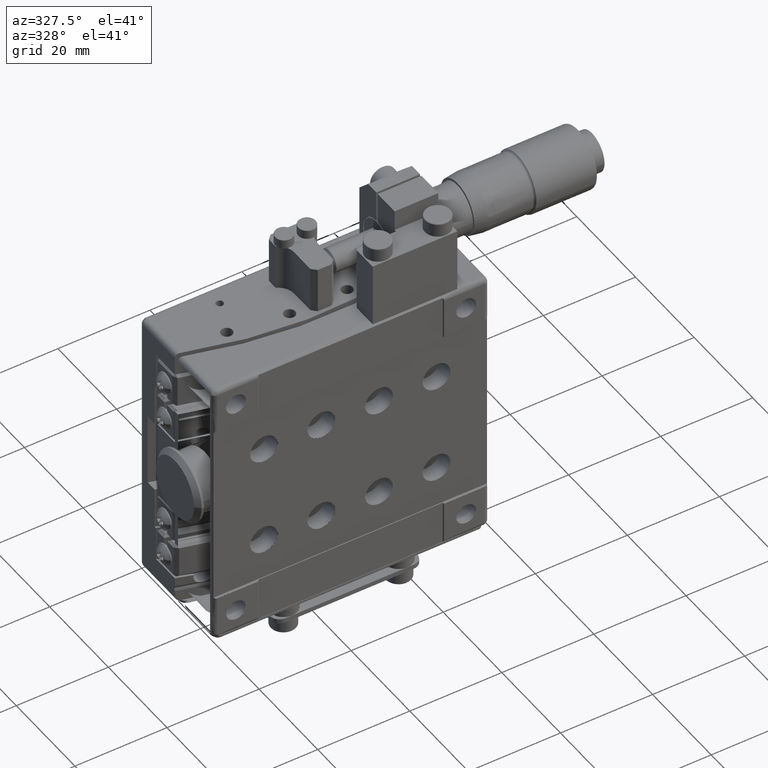
[diagram: clean part render]
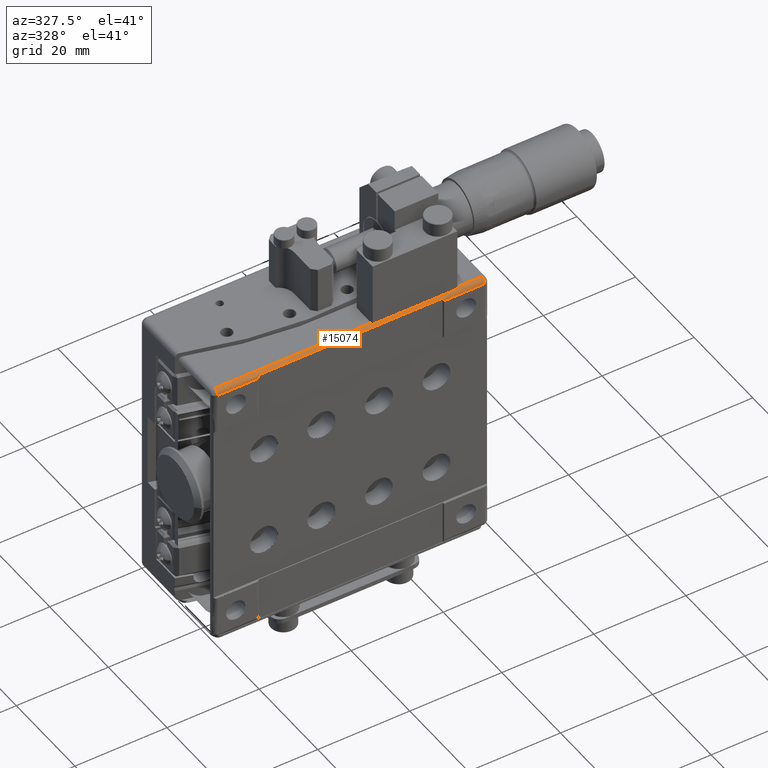
[diagram: same view with one face highlighted and labeled with its STEP entity id]
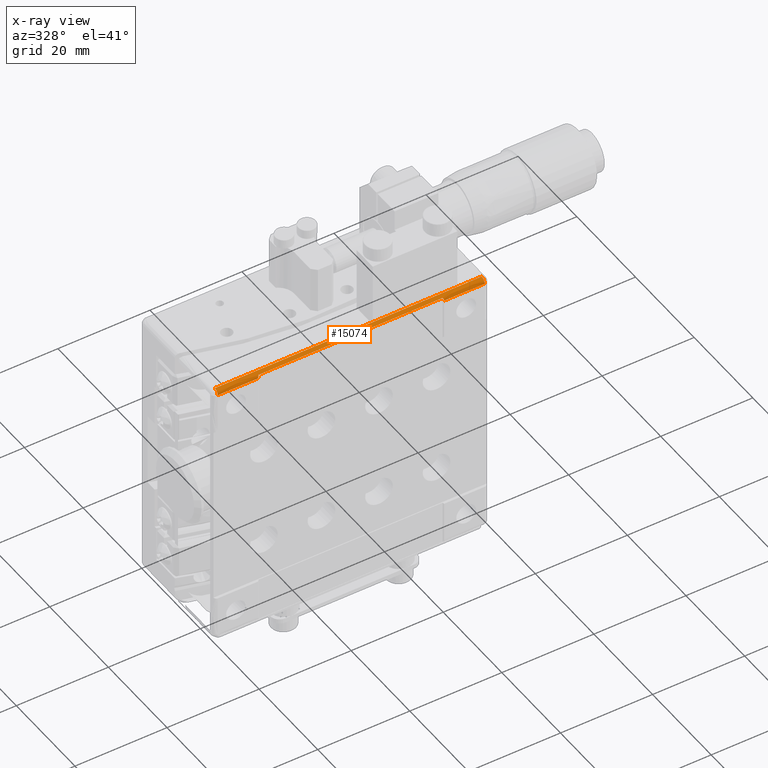
[diagram: x-ray of the same camera — body ghosted, the highlighted face saturated]
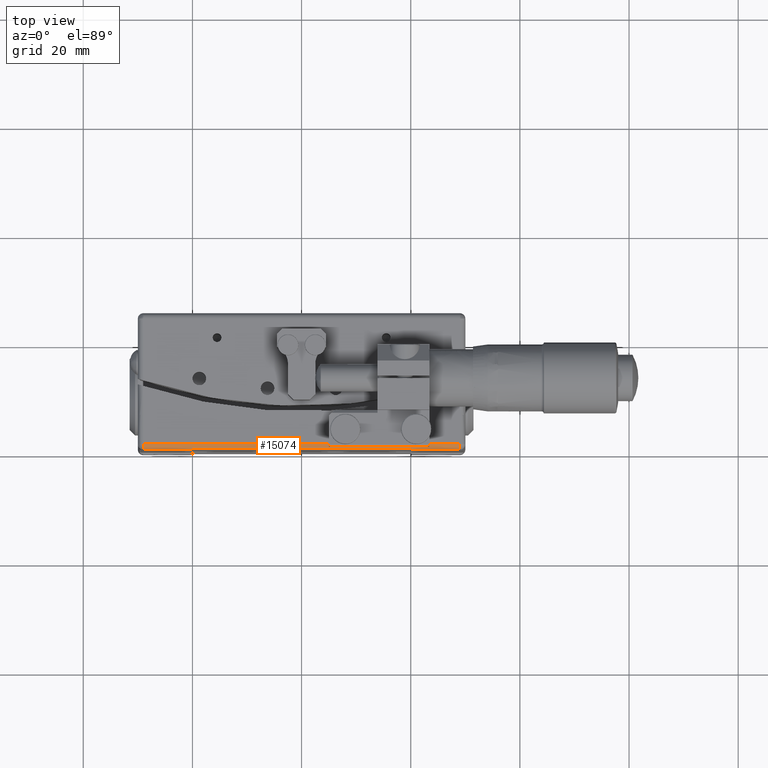
[diagram: same view with one face highlighted and labeled with its STEP entity id]
A machine part, auxiliary view. The second image highlights one B-rep face of the part: STEP entity #15074.
The next image is the same camera in x-ray: the body ghosted, the highlighted face saturated — about 0% of this face is hidden behind the body in this view.
A second angle (top view) of the same face is appended — the face is thin or edge-on in the first view.
In plain terms, the highlighted face is a freeform B-spline surface patch.
Its self-contained STEP definition (entity closure, byte-faithful):
#2598 = CARTESIAN_POINT ( 'NONE',  ( 20.18289443268349714, -99.98289443268345167, 29.21359436211785621 ) ) ;
#3123 = CARTESIAN_POINT ( 'NONE',  ( 23.39999999999948344, -98.99999999999998579, 30.00000000000000000 ) ) ;
#4188 = CARTESIAN_POINT ( 'NONE',  ( 29.00000000000001066, -99.00000000000000000, 30.00000000000000000 ) ) ;
#4524 = CARTESIAN_POINT ( 'NONE',  ( 34.80120000000002278, -99.99999999999998579, 28.99999999999999645 ) ) ;
#4911 = CARTESIAN_POINT ( 'NONE',  ( -34.80119999999999436, -98.99999999999998579, 30.00000000000001421 ) ) ;
#6103 = CIRCLE ( 'NONE', #49387, 1.000000000000042633 ) ;
#9158 = VECTOR ( 'NONE', #73356, 1000.000000000000000 ) ;
#9426 = EDGE_CURVE ( 'NONE', #72787, #22741, #6103, .T. ) ;
#9543 = CARTESIAN_POINT ( 'NONE',  ( 34.80120000000002278, -97.99999999999998579, 27.99999999999999645 ) ) ;
#10275 = LINE ( 'NONE', #40491, #62601 ) ;
#12280 = VERTEX_POINT ( 'NONE', #65595 ) ;
#12959 = CARTESIAN_POINT ( 'NONE',  ( -28.99999999999998934, -99.00000000000000000, 30.00000000000000000 ) ) ;
#13089 = CARTESIAN_POINT ( 'NONE',  ( 29.00000000000000000, -99.00000000000001421, 28.99999999999995381 ) ) ;
#13255 = EDGE_CURVE ( 'NONE', #52978, #15530, #38488, .T. ) ;
#14702 = ORIENTED_EDGE ( 'NONE', *, *, #48253, .F. ) ;
#14964 = CARTESIAN_POINT ( 'NONE',  ( 20.00000000000000711, -99.79999999999999716, 29.59999999999998721 ) ) ;
#15074 = ADVANCED_FACE ( 'NONE', ( #44809 ), #74634, .T. ) ;
#15530 = VERTEX_POINT ( 'NONE', #67536 ) ;
#16503 = CARTESIAN_POINT ( 'NONE',  ( 34.80120000000002278, -97.99999999999998579, 28.99999999999999645 ) ) ;
#18446 = CARTESIAN_POINT ( 'NONE',  ( 4.999999999999480416, -99.00000000000000000, 30.00000000000000355 ) ) ;
#20512 = VECTOR ( 'NONE', #61072, 1000.000000000000000 ) ;
#21165 = CARTESIAN_POINT ( 'NONE',  ( 20.20000000000000284, -99.99999999999997158, 28.99999999999999645 ) ) ;
#21556 = CARTESIAN_POINT ( 'NONE',  ( -34.80119999999999436, -97.99999999999998579, 27.99999999999998224 ) ) ;
#22741 = VERTEX_POINT ( 'NONE', #38423 ) ;
#24540 = EDGE_CURVE ( 'NONE', #12280, #63107, #50780, .T. ) ;
#25443 = CARTESIAN_POINT ( 'NONE',  ( 29.88120000000001397, -99.99999999999998579, 28.99999999999999645 ) ) ;
#25873 = EDGE_CURVE ( 'NONE', #61925, #72787, #39298, .T. ) ;
#27816 = CARTESIAN_POINT ( 'NONE',  ( 1.387778780781445676E-14, -100.0000000000000000, 28.99999999999999645 ) ) ;
#28046 = CARTESIAN_POINT ( 'NONE',  ( -34.80119999999999436, -98.99999999999998579, 30.00000000000000000 ) ) ;
#28501 = CARTESIAN_POINT ( 'NONE',  ( 34.80120000000002278, -97.99999999999998579, 28.99999999999999645 ) ) ;
#29750 = B_SPLINE_CURVE_WITH_KNOTS ( 'NONE', 3,
 ( #14964, #56793, #38970, #2598, #38591, #21165 ),
 .UNSPECIFIED., .F., .F.,
 ( 4, 2, 4 ),
 ( 3.141592653589793116, 3.463343207986428141, 3.785093762383063165 ),
 .UNSPECIFIED. ) ;
#31501 = CARTESIAN_POINT ( 'NONE',  ( 20.20000000000000284, -99.99999999999997158, 28.99999999999999645 ) ) ;
#33156 = CARTESIAN_POINT ( 'NONE',  ( -34.80119999999999436, -97.99999999999998579, 30.00000000000001066 ) ) ;
#34304 = CARTESIAN_POINT ( 'NONE',  ( -34.80119999999999436, -97.99999999999997158, 28.99999999999999645 ) ) ;
#34694 = CARTESIAN_POINT ( 'NONE',  ( 34.80120000000002278, -98.99999999999998579, 27.99999999999999645 ) ) ;
#34727 = VECTOR ( 'NONE', #45112, 1000.000000000000000 ) ;
#35439 = DIRECTION ( 'NONE',  ( 1.000000000000000000, 0.000000000000000000, 0.000000000000000000 ) ) ;
#37190 = EDGE_CURVE ( 'NONE', #38090, #22741, #54491, .T. ) ;
#37454 = CARTESIAN_POINT ( 'NONE',  ( 3.158799999999483354, -99.00000000000000000, 30.00000000000000711 ) ) ;
#37906 = ORIENTED_EDGE ( 'NONE', *, *, #45767, .T. ) ;
#38090 = VERTEX_POINT ( 'NONE', #31501 ) ;
#38423 = CARTESIAN_POINT ( 'NONE',  ( 28.99999999999999289, -100.0000000000000000, 28.99999999999997868 ) ) ;
#38488 = LINE ( 'NONE', #49742, #9158 ) ;
#38591 = CARTESIAN_POINT ( 'NONE',  ( 20.19999999999998863, -99.99999999999994316, 29.10540925533894452 ) ) ;
#38970 = CARTESIAN_POINT ( 'NONE',  ( 20.11447216341753119, -99.91447216341751414, 29.41886116991579669 ) ) ;
#38984 = CARTESIAN_POINT ( 'NONE',  ( -34.80119999999999436, -97.99999999999997158, 28.99999999999999645 ) ) ;
#39298 = LINE ( 'NONE', #28046, #34727 ) ;
#39368 = CARTESIAN_POINT ( 'NONE',  ( -34.80119999999999436, -100.0000000000000000, 27.99999999999998224 ) ) ;
#39839 = DIRECTION ( 'NONE',  ( 1.000000000000000000, 3.987732551697772388E-16, -0.000000000000000000 ) ) ;
#40491 = CARTESIAN_POINT ( 'NONE',  ( -34.80119999999999436, -99.00000000000000000, 30.00000000000000000 ) ) ;
#40991 = VECTOR ( 'NONE', #67249, 1000.000000000000000 ) ;
#42036 = B_SPLINE_CURVE_WITH_KNOTS ( 'NONE', 3,
 ( #59003, #64437, #46629, #52826 ),
 .UNSPECIFIED., .F., .F.,
 ( 4, 4 ),
 ( -6.283185307179586232, -5.639684198386296643 ),
 .UNSPECIFIED. ) ;
#43119 = CARTESIAN_POINT ( 'NONE',  ( -20.19999999999997442, -100.0000000000000142, 28.99999999999999645 ) ) ;
#44577 = ORIENTED_EDGE ( 'NONE', *, *, #24540, .F. ) ;
#44809 = FACE_OUTER_BOUND ( 'NONE', #70077, .T. ) ;
#45112 = DIRECTION ( 'NONE',  ( 1.000000000000000000, 0.000000000000000000, 0.000000000000000000 ) ) ;
#45767 = EDGE_CURVE ( 'NONE', #72541, #52978, #42036, .T. ) ;
#46629 = CARTESIAN_POINT ( 'NONE',  ( -20.12911902025345512, -99.92911902025343807, 29.42784130632873385 ) ) ;
#47375 = ORIENTED_EDGE ( 'NONE', *, *, #76532, .T. ) ;
#47768 = VECTOR ( 'NONE', #39839, 1000.000000000000000 ) ;
#48051 = ORIENTED_EDGE ( 'NONE', *, *, #13255, .T. ) ;
#48253 = EDGE_CURVE ( 'NONE', #63107, #56073, #10275, .T. ) ;
#49387 = AXIS2_PLACEMENT_3D ( 'NONE', #13089, #71589, #53794 ) ;
#49469 = LINE ( 'NONE', #37454, #20512 ) ;
#49742 = CARTESIAN_POINT ( 'NONE',  ( -24.00119999999999720, -99.79999999999999716, 29.59999999999998721 ) ) ;
#50780 = CIRCLE ( 'NONE', #74252, 1.000000000000014655 ) ;
#51471 = LINE ( 'NONE', #27816, #47768 ) ;
#51772 = CARTESIAN_POINT ( 'NONE',  ( -34.80119999999999436, -100.0000000000000142, 28.99999999999999645 ) ) ;
#52826 = CARTESIAN_POINT ( 'NONE',  ( -20.00000000000000000, -99.79999999999998295, 29.60000000000000497 ) ) ;
#52978 = VERTEX_POINT ( 'NONE', #53762 ) ;
#53762 = CARTESIAN_POINT ( 'NONE',  ( -20.00000000000000000, -99.79999999999998295, 29.60000000000000497 ) ) ;
#53780 = CARTESIAN_POINT ( 'NONE',  ( -28.99999999999999289, -98.99999999999998579, 28.99999999999999645 ) ) ;
#53794 = DIRECTION ( 'NONE',  ( 6.938893903906932555E-15, 1.000000000000000000, 4.163336342344159691E-14 ) ) ;
#53975 = ORIENTED_EDGE ( 'NONE', *, *, #68553, .T. ) ;
#54491 = LINE ( 'NONE', #25443, #40991 ) ;
#56073 = VERTEX_POINT ( 'NONE', #18446 ) ;
#56793 = CARTESIAN_POINT ( 'NONE',  ( 20.06324555320338021, -99.86324555320338447, 29.51567259572882662 ) ) ;
#57956 = CARTESIAN_POINT ( 'NONE',  ( 34.80120000000002278, -99.99999999999997158, 29.99999999999999289 ) ) ;
#58907 = ORIENTED_EDGE ( 'NONE', *, *, #37190, .T. ) ;
#59003 = CARTESIAN_POINT ( 'NONE',  ( -20.19999999999997442, -100.0000000000000142, 28.99999999999999645 ) ) ;
#59799 = ORIENTED_EDGE ( 'NONE', *, *, #76248, .T. ) ;
#60510 = ORIENTED_EDGE ( 'NONE', *, *, #25873, .F. ) ;
#61072 = DIRECTION ( 'NONE',  ( -1.000000000000000000, 0.000000000000000000, -0.000000000000000000 ) ) ;
#61474 = ORIENTED_EDGE ( 'NONE', *, *, #9426, .F. ) ;
#61925 = VERTEX_POINT ( 'NONE', #3123 ) ;
#62601 = VECTOR ( 'NONE', #35439, 1000.000000000000000 ) ;
#63107 = VERTEX_POINT ( 'NONE', #12959 ) ;
#64149 = CARTESIAN_POINT ( 'NONE',  ( 34.80120000000002278, -97.99999999999998579, 29.99999999999999289 ) ) ;
#64437 = CARTESIAN_POINT ( 'NONE',  ( -20.19999999999997797, -100.0000000000000142, 29.22191418280604580 ) ) ;
#65016 = DIRECTION ( 'NONE',  ( -3.469446951953563307E-15, 1.000000000000000000, 0.000000000000000000 ) ) ;
#65595 = CARTESIAN_POINT ( 'NONE',  ( -28.99999999999998934, -100.0000000000000000, 28.99999999999999645 ) ) ;
#66526 = DIRECTION ( 'NONE',  ( -1.000000000000000000, -3.469446951953550686E-15, 3.469446951953562913E-15 ) ) ;
#67249 = DIRECTION ( 'NONE',  ( 1.000000000000000000, -0.000000000000000000, -0.000000000000000000 ) ) ;
#67536 = CARTESIAN_POINT ( 'NONE',  ( 20.00000000000000711, -99.79999999999999716, 29.59999999999998721 ) ) ;
#68427 = CARTESIAN_POINT ( 'NONE',  ( 34.80120000000002278, -98.99999999999998579, 29.99999999999999645 ) ) ;
#68553 = EDGE_CURVE ( 'NONE', #15530, #38090, #29750, .T. ) ;
#68808 = CARTESIAN_POINT ( 'NONE',  ( 34.80120000000002278, -99.99999999999997158, 27.99999999999999645 ) ) ;
#69575 = CARTESIAN_POINT ( 'NONE',  ( -34.80119999999999436, -100.0000000000000000, 30.00000000000001066 ) ) ;
#70077 = EDGE_LOOP ( 'NONE', ( #14702, #44577, #59799, #37906, #48051, #53975, #58907, #61474, #60510, #47375 ) ) ;
#71589 = DIRECTION ( 'NONE',  ( 1.000000000000000000, -6.938893903907318308E-15, -6.938893903907510790E-15 ) ) ;
#72541 = VERTEX_POINT ( 'NONE', #43119 ) ;
#72787 = VERTEX_POINT ( 'NONE', #4188 ) ;
#73356 = DIRECTION ( 'NONE',  ( 1.000000000000000000, 0.000000000000000000, 0.000000000000000000 ) ) ;
#74252 = AXIS2_PLACEMENT_3D ( 'NONE', #53780, #66526, #65016 ) ;
#74634 =( BOUNDED_SURFACE ( )  B_SPLINE_SURFACE ( 2, 1, ( 
 ( #16503, #34304 ),
 ( #9543, #21556 ),
 ( #34694, #75367 ),
 ( #68808, #39368 ),
 ( #4524, #51772 ),
 ( #57956, #69575 ),
 ( #68427, #4911 ),
 ( #64149, #33156 ),
 ( #28501, #38984 ) ),
 .UNSPECIFIED., .F., .F., .F. ) 
 B_SPLINE_SURFACE_WITH_KNOTS ( ( 3, 2, 2, 2, 3 ),
 ( 2, 2 ),
 ( 0.000000000000000000, 1.570796326794896558, 3.141592653589793116, 4.712388980384689674, 6.283185307179586232 ),
 ( 0.000000000000000000, 69.60240000000001714 ),
 .UNSPECIFIED. ) 
 GEOMETRIC_REPRESENTATION_ITEM ( )  RATIONAL_B_SPLINE_SURFACE ( (
 ( 1.000000000000000000, 1.000000000000000000),
 ( 0.7071067811865475727, 0.7071067811865475727),
 ( 1.000000000000000000, 1.000000000000000000),
 ( 0.7071067811865475727, 0.7071067811865475727),
 ( 1.000000000000000000, 1.000000000000000000),
 ( 0.7071067811865475727, 0.7071067811865475727),
 ( 1.000000000000000000, 1.000000000000000000),
 ( 0.7071067811865475727, 0.7071067811865475727),
 ( 1.000000000000000000, 1.000000000000000000) ) ) 
 REPRESENTATION_ITEM ( '' )  SURFACE ( )  );
#75367 = CARTESIAN_POINT ( 'NONE',  ( -34.80119999999999436, -98.99999999999998579, 27.99999999999998224 ) ) ;
#76248 = EDGE_CURVE ( 'NONE', #12280, #72541, #51471, .T. ) ;
#76532 = EDGE_CURVE ( 'NONE', #61925, #56073, #49469, .T. ) ;